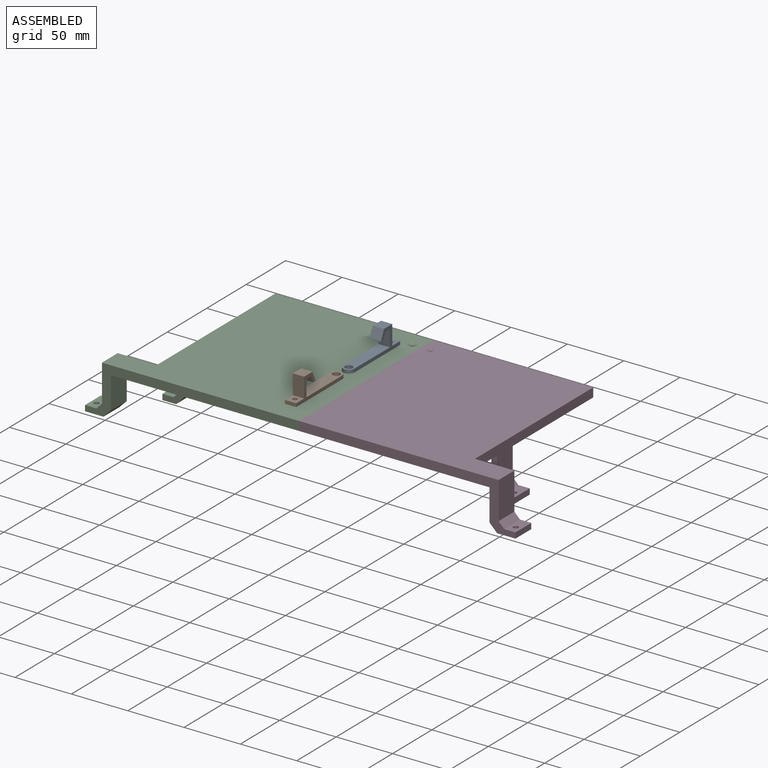
[diagram: assembled view]
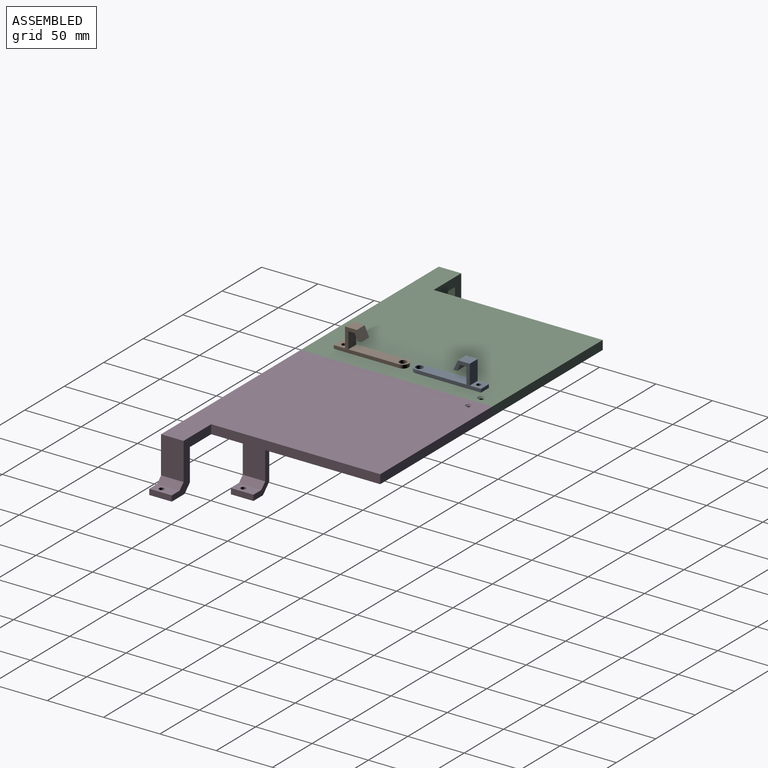
[diagram: assembled view, second angle]
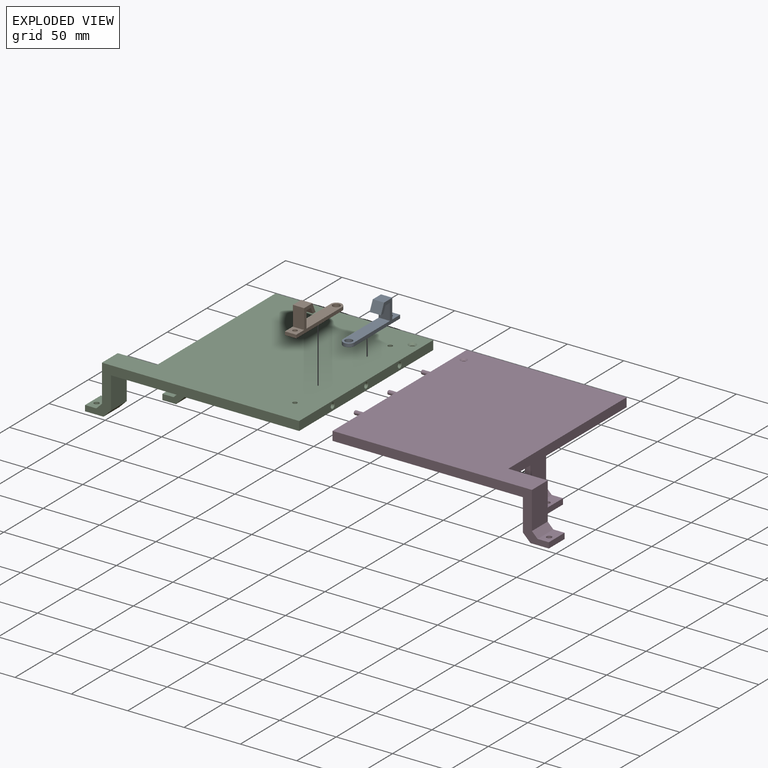
[diagram: exploded view]
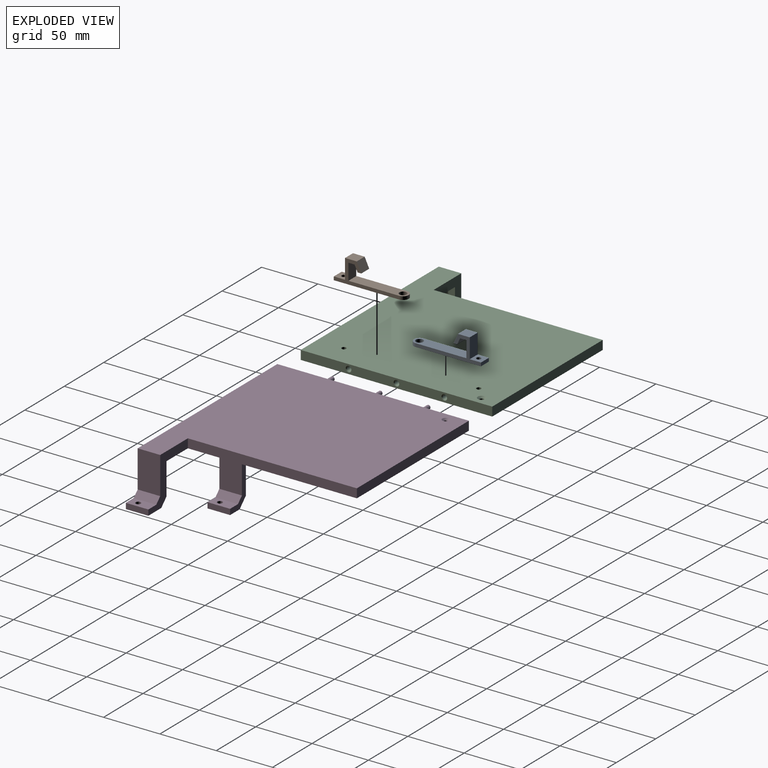
[diagram: exploded view, second angle]
ASSEMBLY  parts=4 mates=3
PART A: 16 faces, bbox 63x20.5x10 mm
  f0: plane 14.5x10mm, normal (-1,0,0), area 145mm2, adj f1,f10,f11,f12
  f1: plane 50x10mm, normal (0,1,0), area 456.1mm2, adj f0,f11,f12,f14,f15
  f2: plane 63x10mm, normal (0,-1,0), area 573.5mm2, adj f3,f11,f12,f13,f14,f15
  f3: plane 10x3mm, normal (1,0,0), area 30mm2, adj f2,f4,f11,f12
  f4: plane 10x10mm, normal (0,1,0), area 87.4mm2, adj f3,f5,f11,f12,f13
  f5: plane 17.5x10mm, normal (1,0,0), area 175mm2, adj f4,f6,f11,f12
  f6: plane 10.41x10mm, normal (0,1,0), area 104.1mm2, adj f5,f7,f11,f12
  f7: plane 10x8.61mm, normal (-0.91,0.42,0), area 95mm2, adj f6,f8,f11,f12
  f8: plane 10x3.31mm, normal (0,-1,0), area 33.1mm2, adj f7,f9,f11,f12
  f9: plane 10x5.61mm, normal (0.91,-0.42,0), area 61.9mm2, adj f8,f10,f11,f12
  f10: plane 10x5.5mm, normal (0,-1,0), area 55mm2, adj f0,f9,f11,f12
  f11: plane 58x20.5mm, normal (0,0,1), area 269.4mm2, adj f0,f1,f2,f3,f4,f5,f6,f7
  f12: plane 58x20.5mm, normal (0,0,-1), area 269.4mm2, adj f0,f1,f2,f3,f4,f5,f6,f7
  f13: cylinder r=2mm len=4mm, axis (0,1,0), area 37.7mm2, adj f2,f4
  f14: cylinder r=5mm len=10mm, axis (0,1,0), area 47.1mm2, adj f1,f2,f11,f12
  f15: cylinder r=3.25mm len=6.5mm, axis (0,-1,0), area 61.3mm2, adj f1,f2
PART B: same geometry as A
PART C: 37 faces, bbox 190x170x43 mm
  f0: plane 50x43mm, normal (0,1,0), area 625.1mm2, adj f1,f2,f5,f6,f10,f11,f15,f17
  f1: plane 28.31x20mm, normal (1,0,0), area 566.3mm2, adj f0,f7,f11,f29
  f2: plane 20x10mm, normal (0,0,1), area 184.1mm2, adj f0,f7,f17,f28,f31
  f3: plane 35x20mm, normal (0,1,0), area 231.1mm2, adj f4,f6,f11,f13,f14,f16,f26,f27
  f4: plane 20x10mm, normal (0,0,1), area 184.1mm2, adj f3,f12,f16,f26,f30
  f5: plane 33x20mm, normal (-1,0,0), area 660mm2, adj f0,f7,f10,f28
  f6: plane 150x33mm, normal (-1,0,0), area 1700mm2, adj f0,f3,f9,f10,f11,f12,f26
  f7: plane 190x43mm, normal (0,-1,0), area 1745.1mm2, adj f1,f2,f5,f8,f10,f11,f15,f17
  f8: plane 170x8mm, normal (1,0,0), area 1288.7mm2, adj f7,f9,f10,f11,f32,f33,f34
  f9: plane 140x8mm, normal (0,1,0), area 1120mm2, adj f6,f8,f10,f11
  f10: plane 175x170mm, normal (0,0,1), area 24436.4mm2, adj f0,f5,f6,f7,f8,f9,f24,f25
  f11: plane 170x167mm, normal (0,0,-1), area 24202.3mm2, adj f0,f1,f3,f6,f7,f8,f9,f12
  f12: plane 35x20mm, normal (0,-1,0), area 231.1mm2, adj f4,f6,f11,f13,f14,f16,f26,f27
  f13: plane 27.07x20mm, normal (1,0,0), area 541.4mm2, adj f3,f11,f12,f27
  f14: plane 20x12.07mm, normal (0,0,-1), area 225.5mm2, adj f3,f12,f16,f27,f30
  f15: plane 20x16.31mm, normal (0,0,-1), area 310.4mm2, adj f0,f7,f17,f29,f31
  f16: plane 20x5mm, normal (-1,0,0), area 100mm2, adj f3,f4,f12,f14
  f17: plane 20x5mm, normal (-1,0,0), area 100mm2, adj f0,f2,f7,f15
  f18: cylinder r=2mm len=11.25mm, axis (1,0,0), area 141.4mm2, adj f19,f34
  f19: cone r=0mm half-angle=59deg, axis (1,0,0), area 14.7mm2, adj f18
  f20: cylinder r=2mm len=11.25mm, axis (1,0,0), area 141.4mm2, adj f21,f33
  f21: cone r=0mm half-angle=59deg, axis (1,0,0), area 14.7mm2, adj f20
  f22: cylinder r=2mm len=11.25mm, axis (1,0,0), area 141.4mm2, adj f23,f32
  f23: cone r=0mm half-angle=59deg, axis (1,0,0), area 14.7mm2, adj f22
  f24: cylinder r=2mm len=8mm, axis (0,0,-1), area 100.5mm2, adj f10,f11
  f25: cylinder r=2mm len=8mm, axis (0,0,-1), area 100.5mm2, adj f10,f11
  f26: plane 20x5mm, normal (-0.71,0,0.71), area 141.4mm2, adj f3,f4,f6,f12
  f27: plane 20x7.93mm, normal (0.71,0,-0.71), area 224.3mm2, adj f3,f12,f13,f14
  f28: plane 20x5mm, normal (-0.71,0,0.71), area 141.4mm2, adj f0,f2,f5,f7
  f29: plane 20x6.69mm, normal (0.71,0,-0.71), area 189.1mm2, adj f0,f1,f7,f15
  f30: cylinder r=2.25mm len=5mm, axis (0,0,1), area 70.7mm2, adj f4,f14
  f31: cylinder r=2.25mm len=5mm, axis (0,0,1), area 70.7mm2, adj f2,f15
  f32: torus R=2.75mm, axis (1,0,0), area 16.8mm2, adj f8,f22
  f33: torus R=2.75mm, axis (1,0,0), area 16.8mm2, adj f8,f20
  f34: torus R=2.75mm, axis (1,0,0), area 16.8mm2, adj f8,f18
  f35: cylinder r=2mm len=6.5mm, axis (0,0,1), area 81.7mm2, adj f11,f36
  f36: cone r=2mm half-angle=45deg, axis (0,0,1), area 36.7mm2, adj f10,f35
PART D: 35 faces, bbox 202x170x43 mm
  f0: plane 192x43mm, normal (0,-1,0), area 1761.1mm2, adj f1,f2,f8,f9,f10,f15,f16,f17
  f1: plane 28.31x20mm, normal (-1,0,0), area 566.3mm2, adj f0,f6,f10,f27
  f2: plane 33x20mm, normal (1,0,0), area 660mm2, adj f0,f6,f9,f26
  f3: plane 35x20mm, normal (0,-1,0), area 231.1mm2, adj f4,f5,f10,f12,f13,f14,f24,f25
  f4: plane 27.07x20mm, normal (-1,0,0), area 541.4mm2, adj f3,f10,f11,f25
  f5: plane 150x33mm, normal (1,0,0), area 1700mm2, adj f3,f6,f7,f9,f10,f11,f24
  f6: plane 50x43mm, normal (0,1,0), area 625.1mm2, adj f1,f2,f5,f9,f10,f15,f16,f17
  f7: plane 142x8mm, normal (0,1,0), area 1136mm2, adj f5,f8,f9,f10
  f8: plane 170x8mm, normal (-1,0,0), area 1331.1mm2, adj f0,f7,f9,f10,f18,f20,f22
  f9: plane 177x170mm, normal (0,0,1), area 24811.7mm2, adj f0,f2,f5,f6,f7,f8,f34
  f10: plane 170x169mm, normal (0,0,-1), area 24572.9mm2, adj f0,f1,f3,f4,f5,f6,f7,f8
  f11: plane 35x20mm, normal (0,1,0), area 231.1mm2, adj f4,f5,f10,f12,f13,f14,f24,f25
  f12: plane 20x12.07mm, normal (0,0,-1), area 225.5mm2, adj f3,f11,f14,f25,f29
  f13: plane 20x10mm, normal (0,0,1), area 184.1mm2, adj f3,f11,f14,f24,f29
  f14: plane 20x5mm, normal (1,0,0), area 100mm2, adj f3,f11,f12,f13
  f15: plane 20x16.31mm, normal (0,0,-1), area 310.4mm2, adj f0,f6,f17,f27,f28
  f16: plane 20x10mm, normal (0,0,1), area 184.1mm2, adj f0,f6,f17,f26,f28
  f17: plane 20x5mm, normal (1,0,0), area 100mm2, adj f0,f6,f15,f16
  f18: cylinder r=1.75mm len=9.25mm, axis (1,0,0), area 101.7mm2, adj f8,f32
  f19: plane 2x2mm, normal (-1,0,0), area 3.1mm2, adj f32
  f20: cylinder r=1.75mm len=9.25mm, axis (1,0,0), area 101.7mm2, adj f8,f31
  f21: plane 2x2mm, normal (-1,0,0), area 3.1mm2, adj f31
  f22: cylinder r=1.75mm len=9.25mm, axis (1,0,0), area 101.7mm2, adj f8,f30
  f23: plane 2x2mm, normal (-1,0,0), area 3.1mm2, adj f30
  f24: plane 20x5mm, normal (0.71,0,0.71), area 141.4mm2, adj f3,f5,f11,f13
  f25: plane 20x7.93mm, normal (-0.71,0,-0.71), area 224.3mm2, adj f3,f4,f11,f12
  f26: plane 20x5mm, normal (0.71,0,0.71), area 141.4mm2, adj f0,f2,f6,f16
  f27: plane 20x6.69mm, normal (-0.71,0,-0.71), area 189.1mm2, adj f0,f1,f6,f15
  f28: cylinder r=2.25mm len=5mm, axis (0,0,1), area 70.7mm2, adj f15,f16
  f29: cylinder r=2.25mm len=5mm, axis (0,0,1), area 70.7mm2, adj f12,f13
  f30: torus R=1mm, axis (-1,0,0), area 10.9mm2, adj f22,f23
  f31: torus R=1mm, axis (-1,0,0), area 10.9mm2, adj f20,f21
  f32: torus R=1mm, axis (-1,0,0), area 10.9mm2, adj f18,f19
  f33: cylinder r=1.5mm len=6.5mm, axis (0,0,1), area 61.3mm2, adj f10,f34
  f34: cone r=1.5mm half-angle=45deg, axis (0,0,1), area 30mm2, adj f9,f33
PLACE A rot(axis=(0.58,0.58,0.58),120deg) t=(-154.41,98.09,19.89)mm
PLACE B rot(axis=(0.58,-0.58,-0.58),120deg) t=(-144.91,-11.5,19.89)mm
PLACE C at identity
PLACE D t=(-40.5,-12.55,0)mm
MATE fastened C.f25 <-> B.f13  axis (0,0,1) through (-149.91,-16.71,8)mm
MATE fastened D.f31 <-> C.f20  axis (1,0,0) through (-129.41,44.29,4)mm
MATE fastened C.f24 <-> A.f13  axis (0,0,1) through (-149.41,103.29,8)mm
